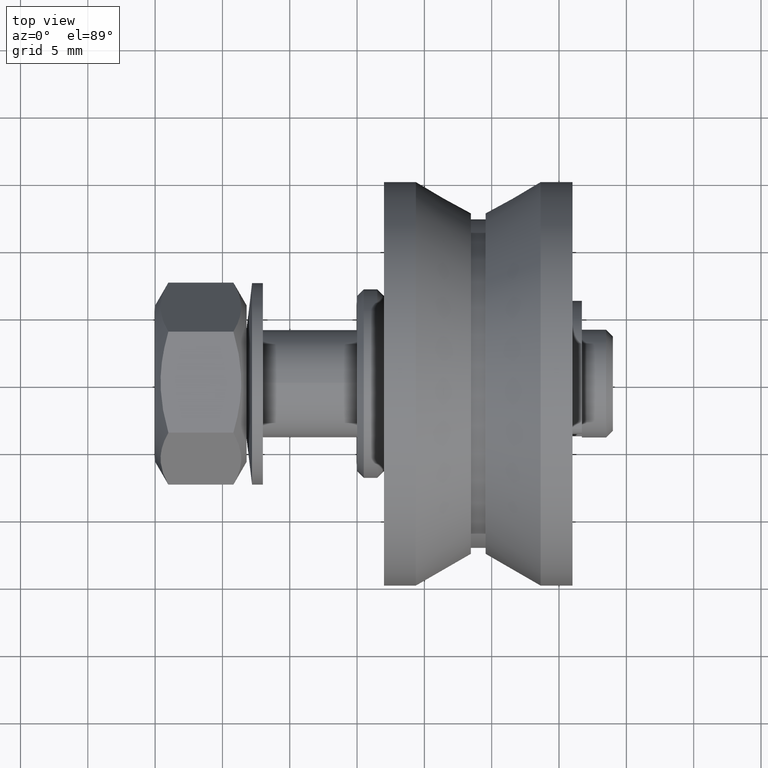
[diagram: clean part render]
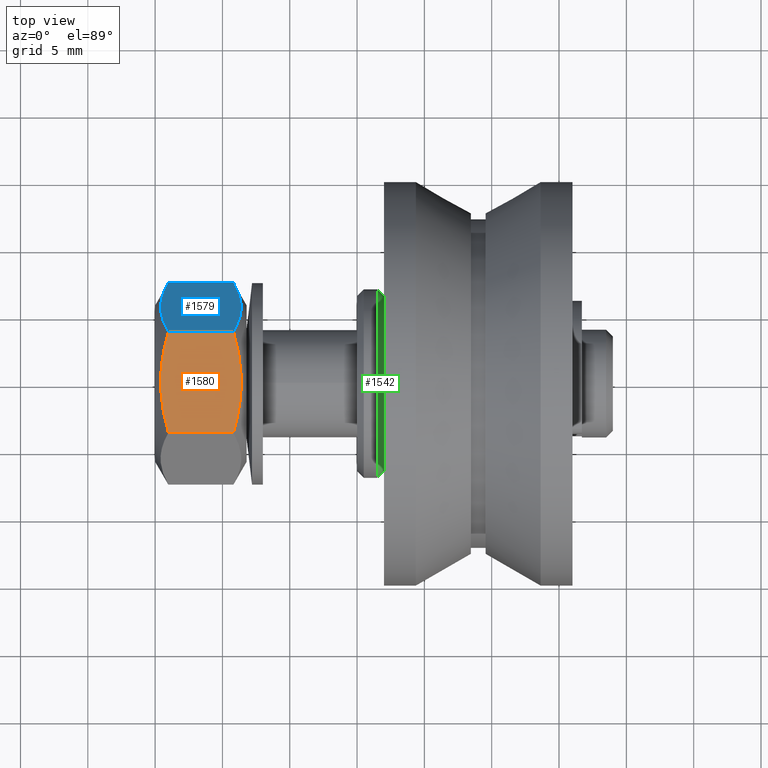
[diagram: same view with three faces highlighted in distinct colors, each labeled with its STEP entity id]
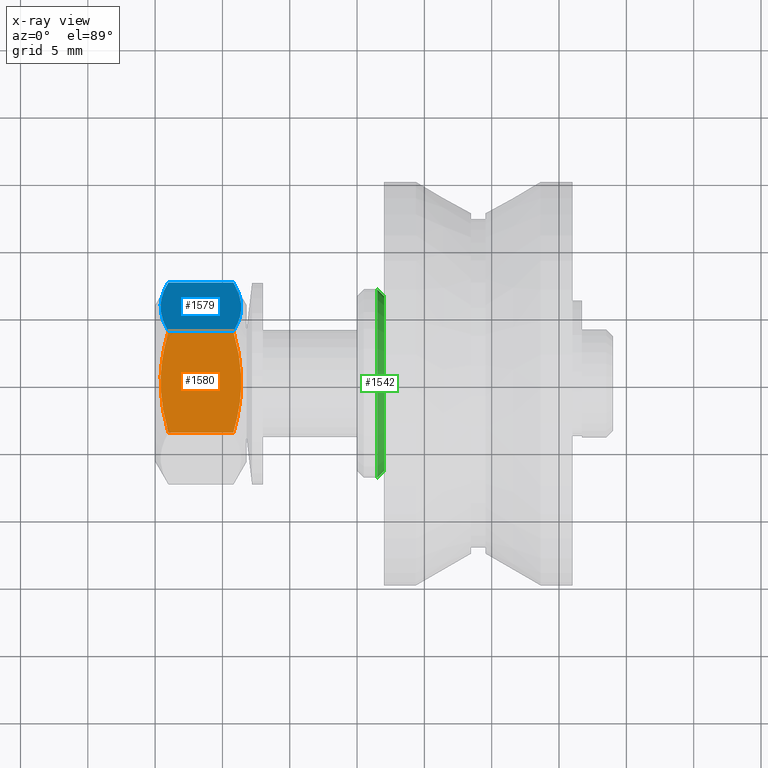
[diagram: x-ray of the same camera — body ghosted, the three highlighted faces saturated]
A machine part, top view with three faces highlighted in distinct colors.
The next image is the same camera in x-ray (body ghosted, the three faces saturated) — at least one of them is partly hidden behind the body in this view.
Their STEP definitions:

[orange] entity #1580 — the highlighted planar face has unit normal (0, 0, 1).
#34=(
BOUNDED_CURVE()
B_SPLINE_CURVE(2,(#2759,#2760,#2761),.UNSPECIFIED.,.F.,.F.)
B_SPLINE_CURVE_WITH_KNOTS((3,3),(0.,0.759483489750644),.UNSPECIFIED.)
CURVE()
GEOMETRIC_REPRESENTATION_ITEM()
RATIONAL_B_SPLINE_CURVE((1.,1.15470053837925,1.))
REPRESENTATION_ITEM('')
);
#38=(
BOUNDED_CURVE()
B_SPLINE_CURVE(2,(#2778,#2779,#2780),.UNSPECIFIED.,.F.,.F.)
B_SPLINE_CURVE_WITH_KNOTS((3,3),(0.,0.759483489750645),.UNSPECIFIED.)
CURVE()
GEOMETRIC_REPRESENTATION_ITEM()
RATIONAL_B_SPLINE_CURVE((1.,1.15470053837925,1.))
REPRESENTATION_ITEM('')
);
#120=PLANE('',#1876);
#234=FACE_OUTER_BOUND('',#350,.T.);
#350=EDGE_LOOP('',(#1341,#1342,#1343,#1344));
#458=LINE('',#2798,#576);
#459=LINE('',#2800,#577);
#576=VECTOR('',#2281,10.);
#577=VECTOR('',#2284,10.);
#790=VERTEX_POINT('',#2754);
#791=VERTEX_POINT('',#2758);
#794=VERTEX_POINT('',#2773);
#795=VERTEX_POINT('',#2777);
#976=EDGE_CURVE('',#791,#790,#34,.T.);
#982=EDGE_CURVE('',#795,#794,#38,.T.);
#988=EDGE_CURVE('',#790,#795,#458,.T.);
#989=EDGE_CURVE('',#791,#794,#459,.T.);
#1341=ORIENTED_EDGE('',*,*,#976,.T.);
#1342=ORIENTED_EDGE('',*,*,#988,.T.);
#1343=ORIENTED_EDGE('',*,*,#982,.T.);
#1344=ORIENTED_EDGE('',*,*,#989,.F.);
#1580=ADVANCED_FACE('',(#234),#120,.T.);
#1876=AXIS2_PLACEMENT_3D('',#2799,#2282,#2283);
#2281=DIRECTION('',(1.,0.,0.));
#2282=DIRECTION('center_axis',(0.,2.36672330631823E-15,-1.));
#2283=DIRECTION('ref_axis',(-1.,0.,0.));
#2284=DIRECTION('',(1.,0.,0.));
#2754=CARTESIAN_POINT('',(0.984701772033504,3.75277674973259,-6.49999999999999));
#2758=CARTESIAN_POINT('',(0.984701772033504,-3.75277674973254,-6.50000000000002));
#2759=CARTESIAN_POINT('Ctrl Pts',(0.984701772033503,-3.75277674973254,-6.50000000000002));
#2760=CARTESIAN_POINT('Ctrl Pts',(-0.0986315612998215,1.55431223447522E-14,
-6.50000000000001));
#2761=CARTESIAN_POINT('Ctrl Pts',(0.984701772033503,3.75277674973257,-6.5));
#2773=CARTESIAN_POINT('',(5.8152982279665,-3.75277674973254,-6.50000000000002));
#2777=CARTESIAN_POINT('',(5.8152982279665,3.75277674973259,-6.49999999999999));
#2778=CARTESIAN_POINT('Ctrl Pts',(5.8152982279665,3.75277674973257,-6.5));
#2779=CARTESIAN_POINT('Ctrl Pts',(6.89863156129982,1.47104550762833E-14,
-6.50000000000001));
#2780=CARTESIAN_POINT('Ctrl Pts',(5.8152982279665,-3.75277674973254,-6.50000000000002));
#2798=CARTESIAN_POINT('',(0.,3.75277674973258,-6.5));
#2799=CARTESIAN_POINT('Origin',(0.,3.75277674973258,-6.5));
#2800=CARTESIAN_POINT('',(0.,-3.75277674973255,-6.50000000000002));

[blue] entity #1579 — the highlighted planar face has unit normal (0, 0.866, 0.5).
#33=(
BOUNDED_CURVE()
B_SPLINE_CURVE(2,(#2755,#2756,#2757),.UNSPECIFIED.,.F.,.F.)
B_SPLINE_CURVE_WITH_KNOTS((3,3),(0.,0.759483489750645),.UNSPECIFIED.)
CURVE()
GEOMETRIC_REPRESENTATION_ITEM()
RATIONAL_B_SPLINE_CURVE((1.,1.15470053837925,1.))
REPRESENTATION_ITEM('')
);
#39=(
BOUNDED_CURVE()
B_SPLINE_CURVE(2,(#2782,#2783,#2784),.UNSPECIFIED.,.F.,.F.)
B_SPLINE_CURVE_WITH_KNOTS((3,3),(0.,0.759483489750646),.UNSPECIFIED.)
CURVE()
GEOMETRIC_REPRESENTATION_ITEM()
RATIONAL_B_SPLINE_CURVE((1.,1.15470053837925,1.))
REPRESENTATION_ITEM('')
);
#119=PLANE('',#1875);
#233=FACE_OUTER_BOUND('',#349,.T.);
#349=EDGE_LOOP('',(#1337,#1338,#1339,#1340));
#457=LINE('',#2797,#575);
#458=LINE('',#2798,#576);
#575=VECTOR('',#2280,10.);
#576=VECTOR('',#2281,10.);
#789=VERTEX_POINT('',#2750);
#790=VERTEX_POINT('',#2754);
#795=VERTEX_POINT('',#2777);
#796=VERTEX_POINT('',#2781);
#975=EDGE_CURVE('',#790,#789,#33,.T.);
#983=EDGE_CURVE('',#796,#795,#39,.T.);
#987=EDGE_CURVE('',#789,#796,#457,.T.);
#988=EDGE_CURVE('',#790,#795,#458,.T.);
#1337=ORIENTED_EDGE('',*,*,#975,.T.);
#1338=ORIENTED_EDGE('',*,*,#987,.T.);
#1339=ORIENTED_EDGE('',*,*,#983,.T.);
#1340=ORIENTED_EDGE('',*,*,#988,.F.);
#1579=ADVANCED_FACE('',(#233),#119,.T.);
#1875=AXIS2_PLACEMENT_3D('',#2796,#2278,#2279);
#2278=DIRECTION('center_axis',(0.,0.866025403784439,-0.499999999999999));
#2279=DIRECTION('ref_axis',(0.,0.499999999999999,0.866025403784439));
#2280=DIRECTION('',(1.,0.,0.));
#2281=DIRECTION('',(1.,0.,0.));
#2750=CARTESIAN_POINT('',(0.984701772033504,7.50555349946513,0.));
#2754=CARTESIAN_POINT('',(0.984701772033504,3.75277674973259,-6.49999999999999));
#2755=CARTESIAN_POINT('Ctrl Pts',(0.984701772033503,3.75277674973259,-6.49999999999999));
#2756=CARTESIAN_POINT('Ctrl Pts',(-0.0986315612998236,5.62916512459886,
-3.24999999999999));
#2757=CARTESIAN_POINT('Ctrl Pts',(0.984701772033504,7.50555349946513,6.26267694011909E-16));
#2777=CARTESIAN_POINT('',(5.8152982279665,3.75277674973259,-6.49999999999999));
#2781=CARTESIAN_POINT('',(5.8152982279665,7.50555349946513,0.));
#2782=CARTESIAN_POINT('Ctrl Pts',(5.8152982279665,7.50555349946514,3.13133847005954E-15));
#2783=CARTESIAN_POINT('Ctrl Pts',(6.89863156129983,5.62916512459886,-3.24999999999999));
#2784=CARTESIAN_POINT('Ctrl Pts',(5.8152982279665,3.75277674973259,-6.49999999999999));
#2796=CARTESIAN_POINT('Origin',(0.,7.50555349946513,2.48106007147118E-15));
#2797=CARTESIAN_POINT('',(0.,7.50555349946513,2.48106007147118E-15));
#2798=CARTESIAN_POINT('',(0.,3.75277674973258,-6.5));

[green] entity #1542 — the highlighted conical surface has half-angle 45 deg.
#196=FACE_OUTER_BOUND('',#297,.T.);
#297=EDGE_LOOP('',(#1198,#1199,#1200,#1201,#1202));
#435=LINE('',#2615,#553);
#553=VECTOR('',#2106,6.75);
#635=CIRCLE('',#1799,6.5);
#636=CIRCLE('',#1800,7.);
#637=CIRCLE('',#1801,7.);
#749=VERTEX_POINT('',#2612);
#750=VERTEX_POINT('',#2614);
#751=VERTEX_POINT('',#2616);
#915=EDGE_CURVE('',#749,#749,#635,.T.);
#916=EDGE_CURVE('',#749,#750,#435,.T.);
#917=EDGE_CURVE('',#750,#751,#636,.T.);
#918=EDGE_CURVE('',#751,#750,#637,.T.);
#1198=ORIENTED_EDGE('',*,*,#915,.T.);
#1199=ORIENTED_EDGE('',*,*,#916,.T.);
#1200=ORIENTED_EDGE('',*,*,#917,.T.);
#1201=ORIENTED_EDGE('',*,*,#918,.T.);
#1202=ORIENTED_EDGE('',*,*,#916,.F.);
#1500=CONICAL_SURFACE('',#1798,6.75,0.785398163397449);
#1542=ADVANCED_FACE('',(#196),#1500,.T.);
#1798=AXIS2_PLACEMENT_3D('',#2611,#2102,#2103);
#1799=AXIS2_PLACEMENT_3D('',#2613,#2104,#2105);
#1800=AXIS2_PLACEMENT_3D('',#2617,#2107,#2108);
#1801=AXIS2_PLACEMENT_3D('',#2618,#2109,#2110);
#2102=DIRECTION('center_axis',(-1.,0.,0.));
#2103=DIRECTION('ref_axis',(0.,-1.,0.));
#2104=DIRECTION('center_axis',(-1.,0.,0.));
#2105=DIRECTION('ref_axis',(0.,-1.,0.));
#2106=DIRECTION('',(-0.707106781186547,0.707106781186548,8.65956056235494E-17));
#2107=DIRECTION('center_axis',(1.,0.,0.));
#2108=DIRECTION('ref_axis',(0.,-1.,0.));
#2109=DIRECTION('center_axis',(1.,0.,0.));
#2110=DIRECTION('ref_axis',(0.,-1.,0.));
#2611=CARTESIAN_POINT('Origin',(1.75,0.,0.));
#2612=CARTESIAN_POINT('',(2.,6.5,-7.96020419445779E-16));
#2613=CARTESIAN_POINT('Origin',(2.,0.,0.));
#2614=CARTESIAN_POINT('',(1.5,7.,8.57252759403147E-16));
#2615=CARTESIAN_POINT('',(1.75,6.75,8.26636589424463E-16));
#2616=CARTESIAN_POINT('',(1.5,-7.,-8.57252759403147E-16));
#2617=CARTESIAN_POINT('Origin',(1.5,0.,0.));
#2618=CARTESIAN_POINT('Origin',(1.5,0.,0.));